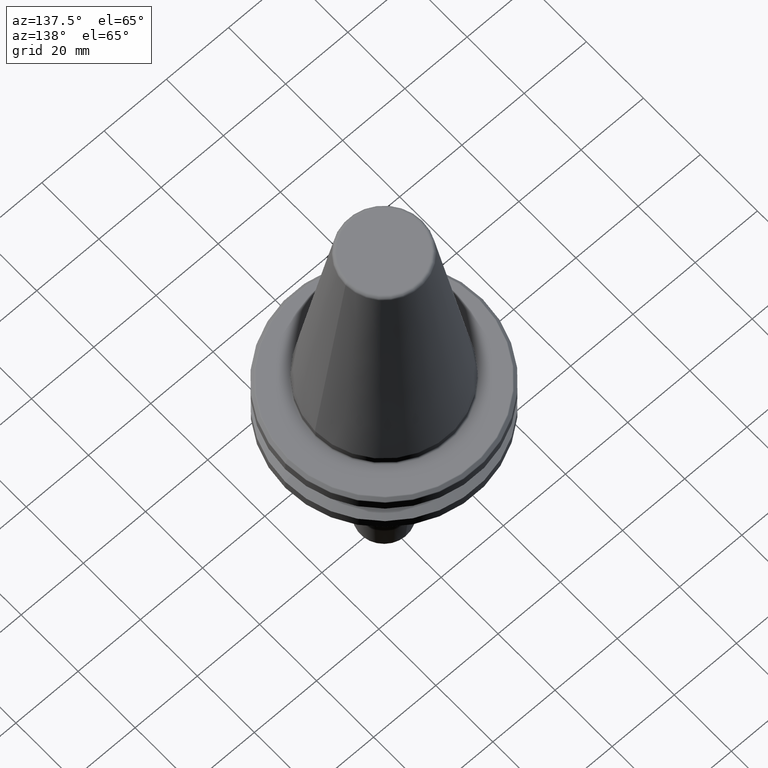
[diagram: clean part render]
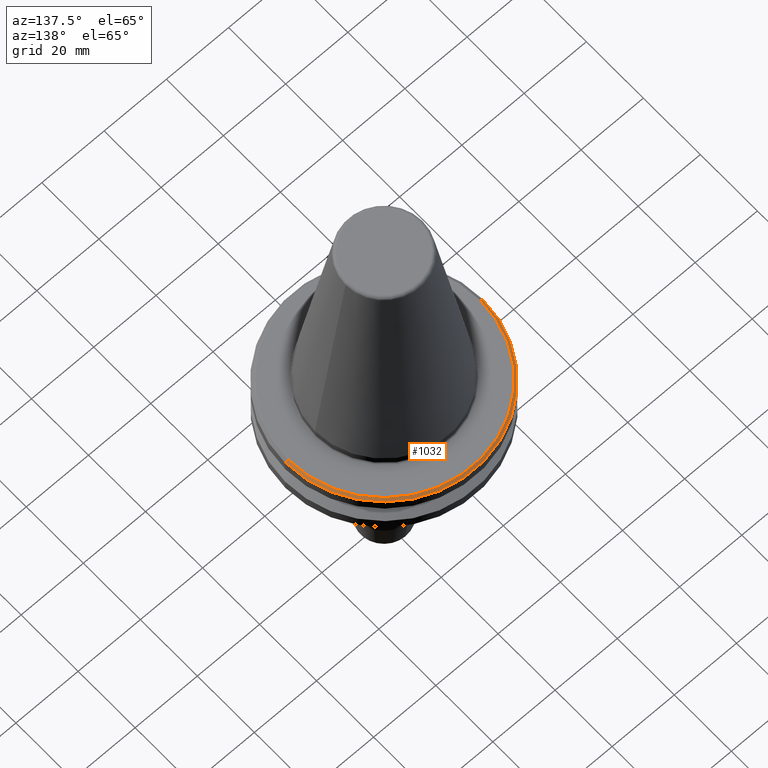
[diagram: same view with one face highlighted and labeled with its STEP entity id]
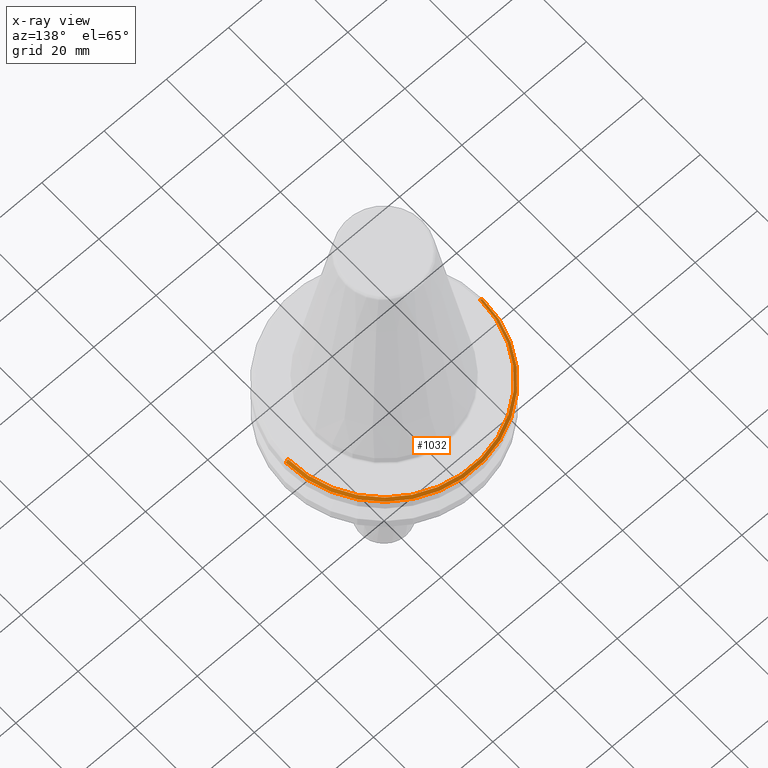
[diagram: x-ray of the same camera — body ghosted, the highlighted face saturated]
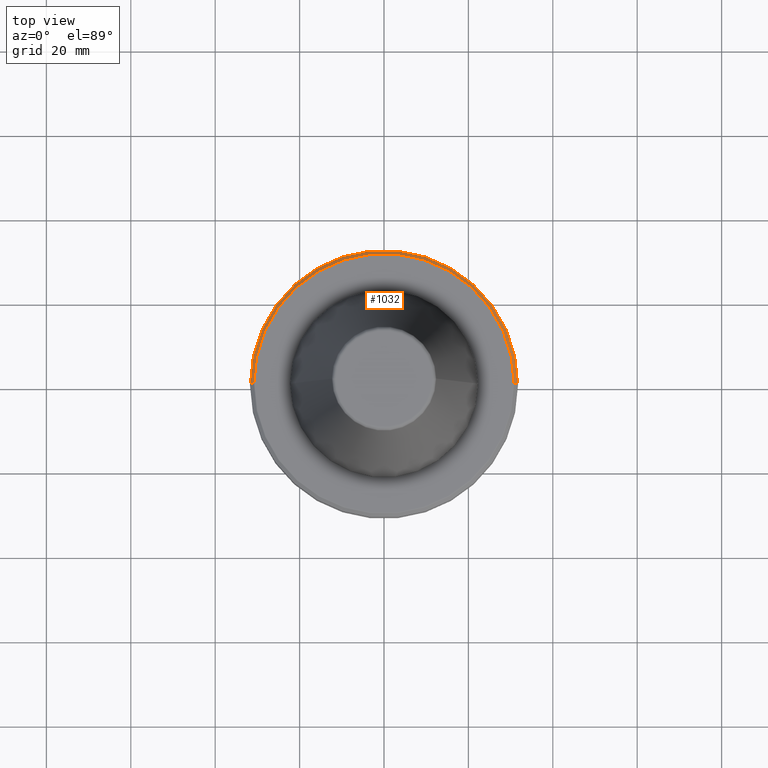
[diagram: same view with one face highlighted and labeled with its STEP entity id]
A machine part, auxiliary view. The second image highlights one B-rep face of the part: STEP entity #1032.
The next image is the same camera in x-ray: the body ghosted, the highlighted face saturated — about 0% of this face is hidden behind the body in this view.
A second angle (top view) of the same face is appended — the face is thin or edge-on in the first view.
In plain terms, the highlighted conical surface has half-angle 45 deg.
Its self-contained STEP definition (entity closure, byte-faithful):
#63 = DIRECTION ( 'NONE',  ( 0.0000000000000000000, 0.0000000000000000000, -1.000000000000000000 ) ) ;
#77 = VERTEX_POINT ( 'NONE', #1184 ) ;
#91 = CIRCLE ( 'NONE', #365, 30.86715728752538700 ) ;
#92 = VERTEX_POINT ( 'NONE', #877 ) ;
#115 = CARTESIAN_POINT ( 'NONE',  ( -30.86715728752538700, 0.0000000000000000000, -3.317157287525379400 ) ) ;
#161 = VERTEX_POINT ( 'NONE', #407 ) ;
#218 = ORIENTED_EDGE ( 'NONE', *, *, #470, .F. ) ;
#221 = DIRECTION ( 'NONE',  ( -0.0000000000000000000, -0.0000000000000000000, 1.000000000000000000 ) ) ;
#228 = VERTEX_POINT ( 'NONE', #599 ) ;
#277 = AXIS2_PLACEMENT_3D ( 'NONE', #738, #63, #1123 ) ;
#342 = DIRECTION ( 'NONE',  ( 1.000000000000000000, 0.0000000000000000000, 0.0000000000000000000 ) ) ;
#365 = AXIS2_PLACEMENT_3D ( 'NONE', #412, #507, #342 ) ;
#407 = CARTESIAN_POINT ( 'NONE',  ( -31.63284271247462300, 3.881079772434609700E-015, -4.082842712474624500 ) ) ;
#412 = CARTESIAN_POINT ( 'NONE',  ( 0.0000000000000000000, 0.0000000000000000000, -3.317157287525379400 ) ) ;
#465 = DIRECTION ( 'NONE',  ( 0.7071067811865426900, 8.659560562354873700E-017, -0.7071067811865523500 ) ) ;
#470 = EDGE_CURVE ( 'NONE', #228, #161, #992, .T. ) ;
#483 = EDGE_CURVE ( 'NONE', #77, #161, #898, .T. ) ;
#507 = DIRECTION ( 'NONE',  ( -0.0000000000000000000, -0.0000000000000000000, 1.000000000000000000 ) ) ;
#568 = ORIENTED_EDGE ( 'NONE', *, *, #483, .T. ) ;
#575 = LINE ( 'NONE', #1127, #1090 ) ;
#599 = CARTESIAN_POINT ( 'NONE',  ( -30.86715728752538400, 3.780136537094586400E-015, -3.317157287525379400 ) ) ;
#602 = DIRECTION ( 'NONE',  ( 1.000000000000000000, 0.0000000000000000000, 0.0000000000000000000 ) ) ;
#669 = AXIS2_PLACEMENT_3D ( 'NONE', #979, #221, #602 ) ;
#692 = DIRECTION ( 'NONE',  ( -0.7071067811865426900, 0.0000000000000000000, -0.7071067811865523500 ) ) ;
#738 = CARTESIAN_POINT ( 'NONE',  ( 0.0000000000000000000, 0.0000000000000000000, -3.317157287525379400 ) ) ;
#783 = EDGE_CURVE ( 'NONE', #92, #77, #575, .T. ) ;
#795 = ORIENTED_EDGE ( 'NONE', *, *, #783, .T. ) ;
#805 = EDGE_CURVE ( 'NONE', #92, #228, #91, .T. ) ;
#833 = EDGE_LOOP ( 'NONE', ( #1233, #795, #568, #218 ) ) ;
#868 = CONICAL_SURFACE ( 'NONE', #277, 30.86715728752538700, 0.7853981633974415100 ) ;
#877 = CARTESIAN_POINT ( 'NONE',  ( 30.86715728752538400, 0.0000000000000000000, -3.317157287525379400 ) ) ;
#898 = CIRCLE ( 'NONE', #669, 31.63284271247462300 ) ;
#979 = CARTESIAN_POINT ( 'NONE',  ( 0.0000000000000000000, 0.0000000000000000000, -4.082842712474624500 ) ) ;
#992 = LINE ( 'NONE', #115, #1229 ) ;
#1032 = ADVANCED_FACE ( 'NONE', ( #1161 ), #868, .T. ) ;
#1090 = VECTOR ( 'NONE', #465, 1000.000000000000000 ) ;
#1123 = DIRECTION ( 'NONE',  ( -1.000000000000000000, 0.0000000000000000000, 0.0000000000000000000 ) ) ;
#1127 = CARTESIAN_POINT ( 'NONE',  ( 30.86715728752538700, 3.780136537094586400E-015, -3.317157287525379400 ) ) ;
#1161 = FACE_OUTER_BOUND ( 'NONE', #833, .T. ) ;
#1184 = CARTESIAN_POINT ( 'NONE',  ( 31.63284271247462300, 0.0000000000000000000, -4.082842712474624500 ) ) ;
#1229 = VECTOR ( 'NONE', #692, 1000.000000000000000 ) ;
#1233 = ORIENTED_EDGE ( 'NONE', *, *, #805, .F. ) ;